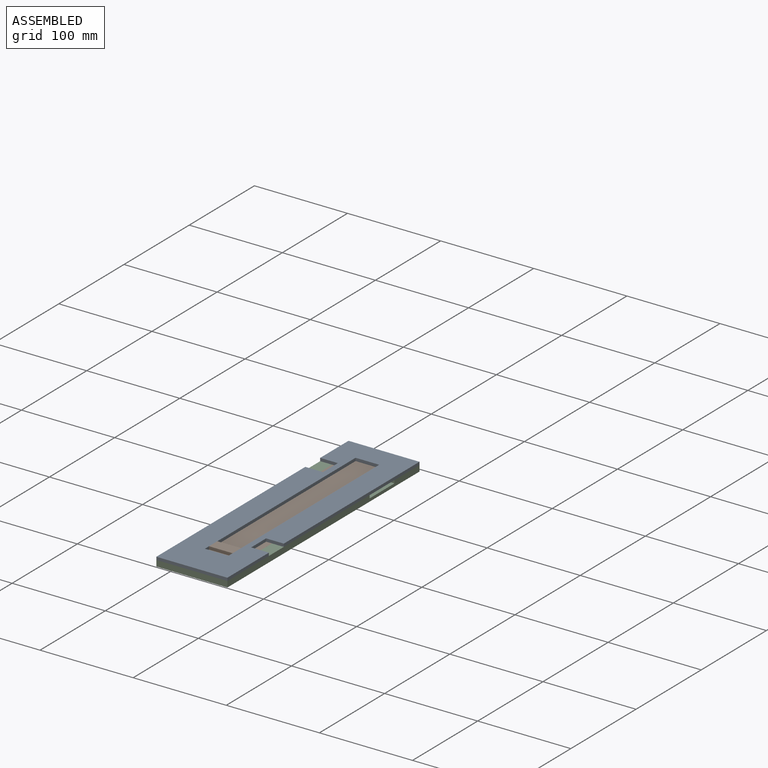
[diagram: assembled view]
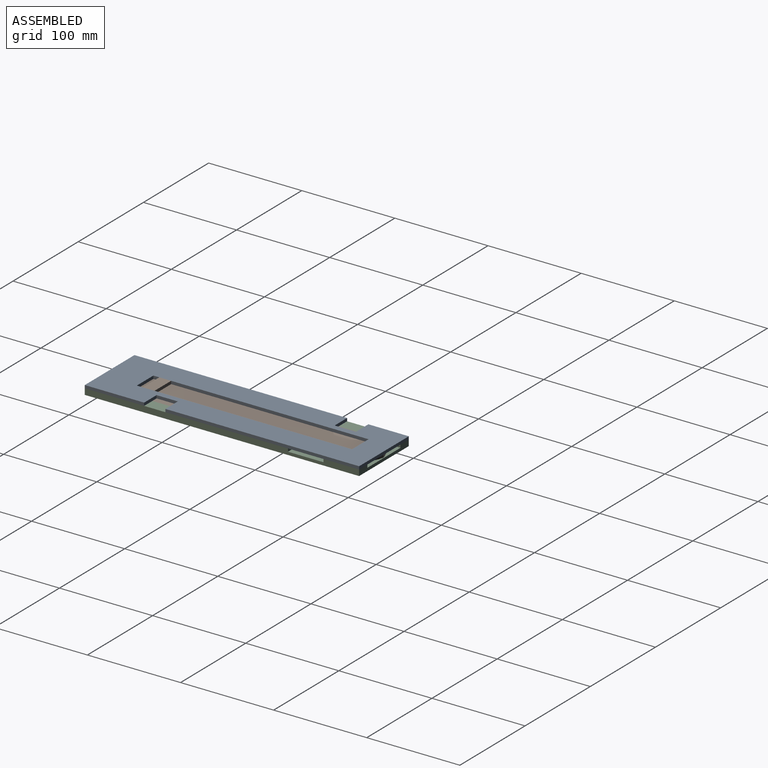
[diagram: assembled view, second angle]
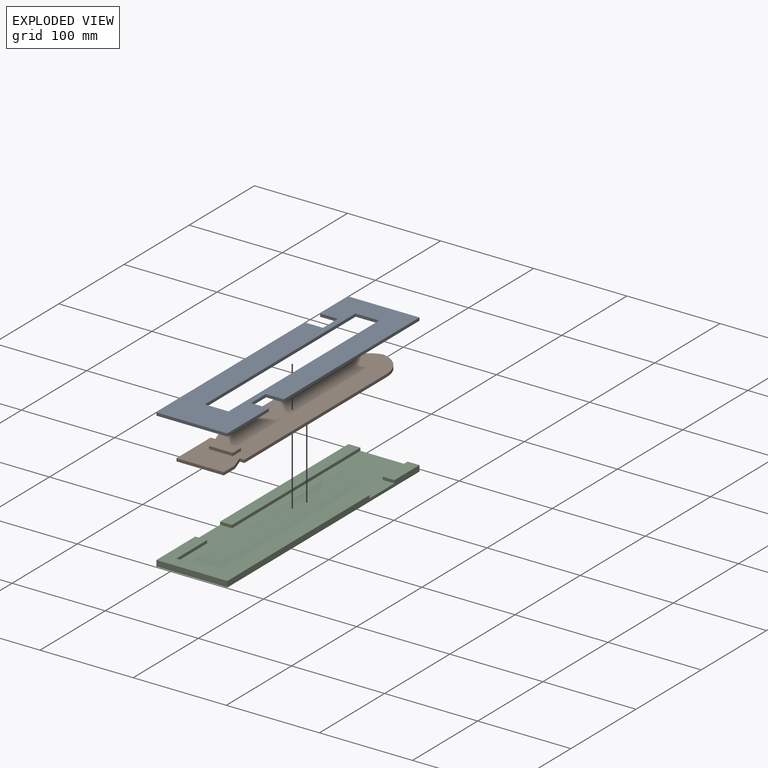
[diagram: exploded view]
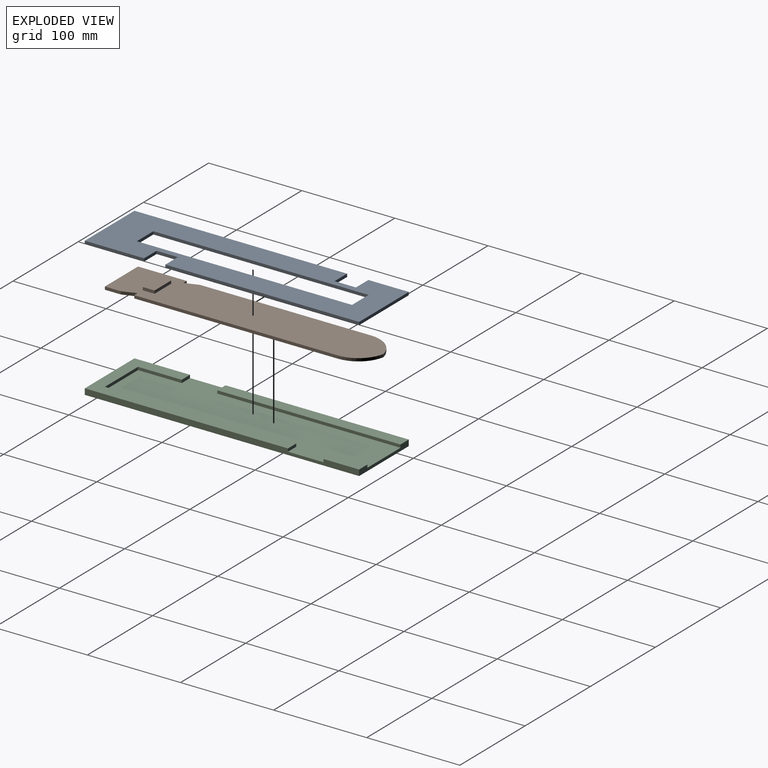
[diagram: exploded view, second angle]
ASSEMBLY  parts=3 mates=2
PART A: 18 faces, bbox 76.2x294.6x3.2 mm
  f0: plane 294.64x76.2mm, normal (0,0,1), area 15709.6mm2, adj f2,f3,f4,f5,f6,f7,f8,f9
  f1: plane 294.64x76.2mm, normal (0,0,-1), area 15709.6mm2, adj f2,f3,f4,f5,f6,f7,f8,f9
  f2: plane 22.86x3.18mm, normal (-1,0,0), area 72.6mm2, adj f0,f1,f16,f17
  f3: plane 22.86x3.18mm, normal (1,0,0), area 72.6mm2, adj f0,f1,f14,f15
  f4: plane 76.2x3.18mm, normal (0,1,0), area 241.9mm2, adj f0,f1,f9,f10
  f5: plane 231.14x3.18mm, normal (1,0,0), area 733.9mm2, adj f0,f1,f6,f8
  f6: plane 25.4x3.18mm, normal (0,-1,0), area 80.6mm2, adj f0,f1,f5,f7
  f7: plane 231.14x3.18mm, normal (-1,0,0), area 733.9mm2, adj f0,f1,f6,f8
  f8: plane 25.4x3.18mm, normal (0,1,0), area 80.6mm2, adj f0,f1,f5,f7
  f9: plane 208.03x3.18mm, normal (1,0,0), area 660.5mm2, adj f0,f1,f4,f14
  f10: plane 43.43x3.18mm, normal (-1,0,0), area 137.9mm2, adj f0,f1,f4,f16
  f11: plane 63.75x3.18mm, normal (1,0,0), area 202.4mm2, adj f0,f1,f13,f15
  f12: plane 228.35x3.18mm, normal (-1,0,0), area 725mm2, adj f0,f1,f13,f17
  f13: plane 76.2x3.18mm, normal (0,-1,0), area 241.9mm2, adj f0,f1,f11,f12
  f14: plane 19.05x3.18mm, normal (0,-1,0), area 60.5mm2, adj f0,f1,f3,f9
  f15: plane 19.05x3.18mm, normal (0,1,0), area 60.5mm2, adj f0,f1,f3,f11
  f16: plane 19.05x3.18mm, normal (0,-1,0), area 60.5mm2, adj f0,f1,f2,f10
  f17: plane 19.05x3.18mm, normal (0,1,0), area 60.5mm2, adj f0,f1,f2,f12
PART B: 18 faces, bbox 50.8x281.3x6.4 mm
  f0: plane 183.5x3.18mm, normal (-1,0,0), area 582.6mm2, adj f2,f6,f8,f17
  f1: plane 17.17x3.18mm, normal (1,0,0), area 54.5mm2, adj f2,f4,f8,f16
  f2: plane 281.3x50.8mm, normal (0,0,1), area 13497mm2, adj f0,f1,f3,f4,f5,f6,f7,f9
  f3: plane 218.65x3.18mm, normal (1,0,0), area 694.2mm2, adj f2,f7,f8,f14
  f4: plane 50.8x3.18mm, normal (0,-1,0), area 161.3mm2, adj f1,f2,f5,f8
  f5: plane 52.32x3.18mm, normal (-1,0,0), area 166.1mm2, adj f2,f4,f8,f15
  f6: cylinder r=31.75mm len=31.11mm, axis (0,0,1), area 138mm2, adj f0,f2,f7,f8
  f7: cylinder r=31.75mm len=31.11mm, axis (0,0,1), area 138mm2, adj f2,f3,f6,f8
  f8: plane 281.3x50.8mm, normal (0,0,-1), area 13819.6mm2, adj f0,f1,f3,f4,f5,f6,f7,f14
  f9: plane 12.7x3.18mm, normal (-1,0,0), area 40.3mm2, adj f2,f10,f12,f13
  f10: plane 25.4x3.18mm, normal (0,-1,0), area 80.6mm2, adj f2,f9,f11,f13
  f11: plane 12.7x3.18mm, normal (1,0,0), area 40.3mm2, adj f2,f10,f12,f13
  f12: plane 25.4x3.18mm, normal (0,1,0), area 80.6mm2, adj f2,f9,f11,f13
  f13: plane 25.4x12.7mm, normal (0,0,1), area 322.6mm2, adj f9,f10,f11,f12
  f14: plane 5.08x3.18mm, normal (0,-1,0), area 16.1mm2, adj f2,f3,f8,f16
  f15: plane 5.08x3.18mm, normal (0,1,0), area 16.1mm2, adj f2,f5,f8,f17
  f16: plane 14.37x5.08mm, normal (0.94,0.33,0), area 48.4mm2, adj f1,f2,f8,f14
  f17: plane 14.37x5.08mm, normal (-0.94,-0.33,0), area 48.4mm2, adj f0,f2,f8,f15
PART C: 18 faces, bbox 76.2x294.6x6.4 mm
  f0: plane 38.31x12.7mm, normal (0,0,1), area 486.5mm2, adj f5,f8,f10,f17
  f1: plane 205.53x3.18mm, normal (-1,0,0), area 652.6mm2, adj f3,f7,f11,f16
  f2: plane 196.85x3.18mm, normal (1,0,0), area 625mm2, adj f5,f7,f13,f14
  f3: plane 218.23x76.2mm, normal (0,0,1), area 4174.7mm2, adj f1,f4,f6,f8,f11,f12,f15,f16
  f4: plane 294.64x6.35mm, normal (-1,0,0), area 1750mm2, adj f3,f5,f6,f7,f9,f13,f14,f15
  f5: plane 76.2x6.35mm, normal (0,1,0), area 322.6mm2, adj f0,f2,f4,f7,f8,f9,f10,f13
  f6: plane 76.2x6.35mm, normal (0,-1,0), area 483.9mm2, adj f3,f4,f8,f9
  f7: plane 281.94x76.2mm, normal (0,0,1), area 15290.3mm2, adj f1,f2,f4,f5,f8,f10,f11,f12
  f8: plane 294.64x6.35mm, normal (1,0,0), area 1750mm2, adj f0,f3,f5,f6,f7,f9,f16,f17
  f9: plane 294.64x76.2mm, normal (0,0,-1), area 22451.6mm2, adj f4,f5,f6,f8
  f10: plane 38.31x3.18mm, normal (-1,0,0), area 121.6mm2, adj f0,f5,f7,f17
  f11: plane 50.8x3.18mm, normal (0,1,0), area 161.3mm2, adj f1,f3,f7,f12
  f12: plane 46.99x3.18mm, normal (1,0,0), area 149.2mm2, adj f3,f7,f11,f15
  f13: plane 196.85x12.7mm, normal (0,0,1), area 2500mm2, adj f2,f4,f5,f14
  f14: plane 12.7x3.18mm, normal (0,-1,0), area 40.3mm2, adj f2,f4,f7,f13
  f15: plane 12.7x3.18mm, normal (0,1,0), area 40.3mm2, adj f3,f4,f7,f12
  f16: plane 12.7x3.18mm, normal (0,1,0), area 40.3mm2, adj f1,f3,f7,f8
  f17: plane 12.7x3.18mm, normal (0,-1,0), area 40.3mm2, adj f0,f7,f8,f10
PLACE A t=(11.9,-23.58,125.81)mm
PLACE B rot(axis=(-0.56,-0.77,0.31),0deg) t=(-35.73,-26.63,119.46)mm
PLACE C rot(axis=(-0.56,-0.77,0.31),0deg) t=(-10.33,-106.77,119.46)mm fixed
MATE fastened C.f3 <-> A.f1  axis (0,0,1) through (27.77,-106.77,125.81)mm
MATE slider B.f4 <-> C.f11  axis (0,-1,0) through (27.77,-94.07,124.23)mm
